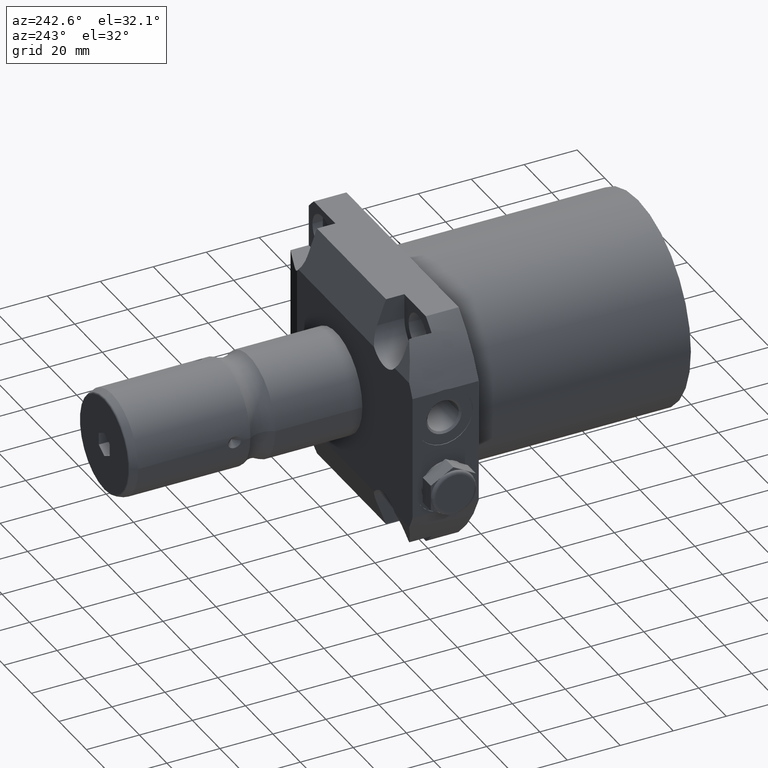
[diagram: clean part render]
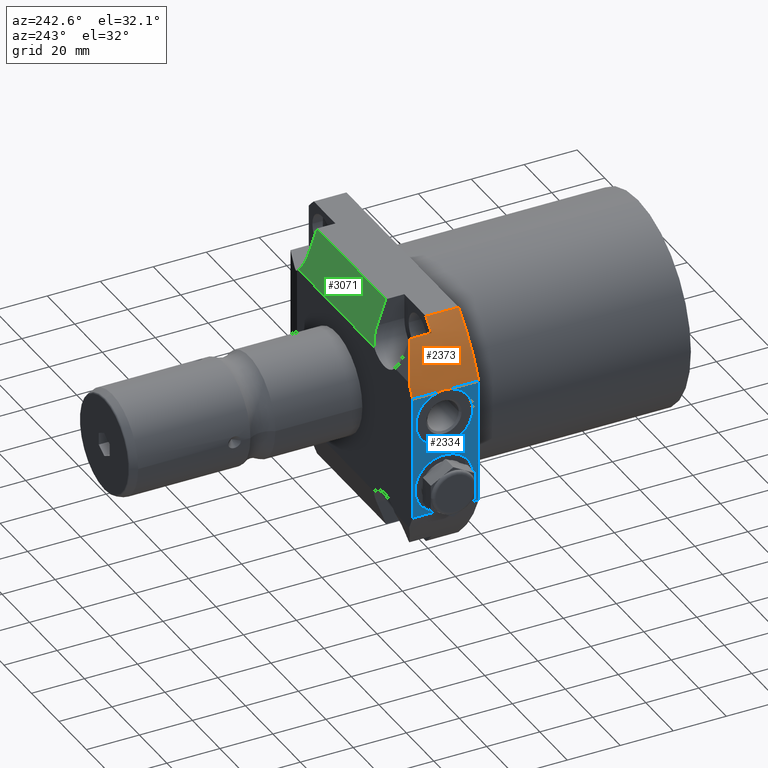
[diagram: same view with three faces highlighted in distinct colors, each labeled with its STEP entity id]
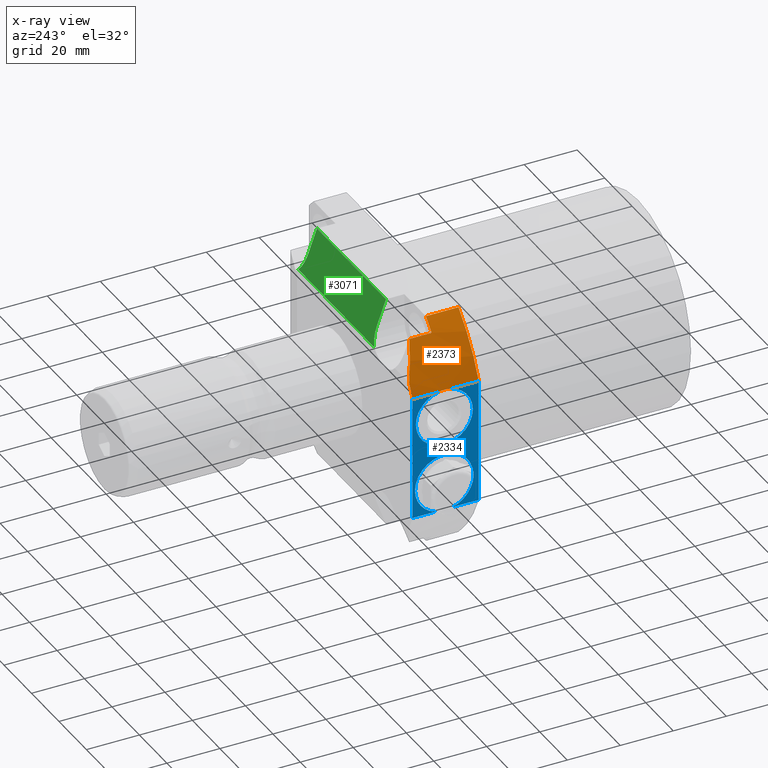
[diagram: x-ray of the same camera — body ghosted, the three highlighted faces saturated]
A machine part, auxiliary view with three faces highlighted in distinct colors.
The next image is the same camera in x-ray (body ghosted, the three faces saturated) — at least one of them is partly hidden behind the body in this view.
Their STEP definitions:

[orange] entity #2373 — the highlighted cylindrical surface (partial cylindrical patch) has radius 60.325 mm, axis along (0, -1, 0).
#147=DIRECTION('',(0.E0,-1.E0,0.E0));
#148=VECTOR('',#147,9.946482331687E0);
#149=CARTESIAN_POINT('',(-5.555E1,1.13919E2,2.352239624273E1));
#150=LINE('',#149,#148);
#166=DIRECTION('',(0.E0,-1.E0,0.E0));
#167=VECTOR('',#166,1.093748233169E1);
#168=CARTESIAN_POINT('',(-5.555E1,9.983748233169E1,2.352239624273E1));
#169=LINE('',#168,#167);
#193=CARTESIAN_POINT('',(-5.555E1,1.039725176683E2,2.352239624273E1));
#194=CARTESIAN_POINT('',(-5.552173736376E1,1.036321514341E2,2.358914069458E1));
#195=CARTESIAN_POINT('',(-5.547908133363E1,1.029480408816E2,2.368924832343E1));
#196=CARTESIAN_POINT('',(-5.545731106004E1,1.019069131890E2,2.374008486992E1));
#197=CARTESIAN_POINT('',(-5.547892613968E1,1.008651502461E2,2.368961128485E1));
#198=CARTESIAN_POINT('',(-5.552163285405E1,1.001791071736E2,2.358938750251E1));
#199=CARTESIAN_POINT('',(-5.555E1,9.983748233169E1,2.352239624273E1));
#393=CARTESIAN_POINT('',(0.E0,8.89E1,0.E0));
#394=DIRECTION('',(0.E0,-1.E0,0.E0));
#395=DIRECTION('',(-6.760648725613E-1,0.E0,7.368421052632E-1));
#396=AXIS2_PLACEMENT_3D('',#393,#394,#395);
#567=CARTESIAN_POINT('',(0.E0,1.01219E2,0.E0));
#568=DIRECTION('',(0.E0,-1.E0,0.E0));
#569=DIRECTION('',(-6.760648725613E-1,0.E0,7.368421052632E-1));
#570=AXIS2_PLACEMENT_3D('',#567,#568,#569);
#713=CARTESIAN_POINT('',(0.E0,1.13919E2,0.E0));
#714=DIRECTION('',(0.E0,-1.E0,0.E0));
#715=DIRECTION('',(-8.806947647727E-1,0.E0,4.736842105263E-1));
#716=AXIS2_PLACEMENT_3D('',#713,#714,#715);
#777=CARTESIAN_POINT('',(-4.4983E1,1.096896780524E2,4.019496655055E1));
#778=CARTESIAN_POINT('',(-4.817806892388E1,1.109911141359E2,3.661930029836E1));
#779=CARTESIAN_POINT('',(-5.088666483011E1,1.124023266086E2,3.274202589558E1));
#780=CARTESIAN_POINT('',(-5.312791168491E1,1.13919E2,2.8575E1));
#822=DIRECTION('',(0.E0,-1.E0,0.E0));
#823=VECTOR('',#822,1.2319E1);
#824=CARTESIAN_POINT('',(-4.078361343726E1,1.01219E2,4.445E1));
#825=LINE('',#824,#823);
#842=DIRECTION('',(0.E0,-1.E0,0.E0));
#843=VECTOR('',#842,8.470678052430E0);
#844=CARTESIAN_POINT('',(-4.4983E1,1.096896780524E2,4.019496655055E1));
#845=LINE('',#844,#843);
#1607=CARTESIAN_POINT('',(-5.555E1,1.13919E2,2.352239624273E1));
#1609=VERTEX_POINT('',#1607);
#1619=CARTESIAN_POINT('',(-5.555E1,8.89E1,2.352239624273E1));
#1621=VERTEX_POINT('',#1619);
#1622=CARTESIAN_POINT('',(-4.078361343726E1,8.89E1,4.445E1));
#1624=VERTEX_POINT('',#1622);
#1668=CARTESIAN_POINT('',(-5.312791168491E1,1.13919E2,2.8575E1));
#1670=VERTEX_POINT('',#1668);
#1676=VERTEX_POINT('',#777);
#1735=CARTESIAN_POINT('',(-4.078361343726E1,1.01219E2,4.445E1));
#1737=VERTEX_POINT('',#1735);
#1768=CARTESIAN_POINT('',(-4.4983E1,1.01219E2,4.019496655055E1));
#1769=VERTEX_POINT('',#1768);
#1828=CARTESIAN_POINT('',(-5.555E1,9.983748233169E1,2.352239624273E1));
#1829=VERTEX_POINT('',#1828);
#1932=CARTESIAN_POINT('',(-5.555E1,1.039725176683E2,2.352239624273E1));
#1933=VERTEX_POINT('',#1932);
#2350=CARTESIAN_POINT('',(0.E0,0.E0,0.E0));
#2351=DIRECTION('',(0.E0,-1.E0,0.E0));
#2352=DIRECTION('',(0.E0,0.E0,-1.E0));
#2353=AXIS2_PLACEMENT_3D('',#2350,#2351,#2352);
#2354=CYLINDRICAL_SURFACE('',#2353,6.0325E1);
#2356=ORIENTED_EDGE('',*,*,#2355,.F.);
#2357=ORIENTED_EDGE('',*,*,#2315,.F.);
#2359=ORIENTED_EDGE('',*,*,#2358,.F.);
#2361=ORIENTED_EDGE('',*,*,#2360,.F.);
#2363=ORIENTED_EDGE('',*,*,#2362,.T.);
#2365=ORIENTED_EDGE('',*,*,#2364,.F.);
#2367=ORIENTED_EDGE('',*,*,#2366,.T.);
#2369=ORIENTED_EDGE('',*,*,#2368,.T.);
#2370=ORIENTED_EDGE('',*,*,#2323,.F.);
#2371=EDGE_LOOP('',(#2356,#2357,#2359,#2361,#2363,#2365,#2367,#2369,#2370));
#2372=FACE_OUTER_BOUND('',#2371,.F.);
#200=B_SPLINE_CURVE_WITH_KNOTS('',3,(#193,#194,#195,#196,#197,#198,#199),
.UNSPECIFIED.,.F.,.F.,(4,1,1,1,4),(0.E0,2.5E-1,5.E-1,7.5E-1,1.E0),
.UNSPECIFIED.);
#397=CIRCLE('',#396,6.0325E1);
#571=CIRCLE('',#570,6.0325E1);
#717=CIRCLE('',#716,6.0325E1);
#781=B_SPLINE_CURVE_WITH_KNOTS('',3,(#777,#778,#779,#780),.UNSPECIFIED.,.F.,.F.,
(4,4),(0.E0,1.E0),.UNSPECIFIED.);
#2315=EDGE_CURVE('',#1609,#1933,#150,.T.);
#2323=EDGE_CURVE('',#1829,#1621,#169,.T.);
#2355=EDGE_CURVE('',#1933,#1829,#200,.T.);
#2358=EDGE_CURVE('',#1670,#1609,#717,.T.);
#2360=EDGE_CURVE('',#1676,#1670,#781,.T.);
#2362=EDGE_CURVE('',#1676,#1769,#845,.T.);
#2364=EDGE_CURVE('',#1737,#1769,#571,.T.);
#2366=EDGE_CURVE('',#1737,#1624,#825,.T.);
#2368=EDGE_CURVE('',#1624,#1621,#397,.T.);
#2373=ADVANCED_FACE('',(#2372),#2354,.T.);

[blue] entity #2334 — the highlighted planar face has unit normal (-1, 0, 0).
#138=CARTESIAN_POINT('',(-5.555E1,1.01905E2,-1.29794E1));
#139=DIRECTION('',(-1.E0,0.E0,0.E0));
#140=DIRECTION('',(0.E0,1.E0,0.E0));
#141=AXIS2_PLACEMENT_3D('',#138,#139,#140);
#143=DIRECTION('',(0.E0,-1.E0,0.E0));
#144=VECTOR('',#143,8.708605738224E0);
#145=CARTESIAN_POINT('',(-5.555E1,1.13919E2,-2.352239624273E1));
#146=LINE('',#145,#144);
#147=DIRECTION('',(0.E0,-1.E0,0.E0));
#148=VECTOR('',#147,9.946482331687E0);
#149=CARTESIAN_POINT('',(-5.555E1,1.13919E2,2.352239624273E1));
#150=LINE('',#149,#148);
#151=CARTESIAN_POINT('',(-5.555E1,1.01905E2,1.2979E1));
#152=DIRECTION('',(-1.E0,0.E0,0.E0));
#153=DIRECTION('',(0.E0,1.924310482226E-1,9.813104970803E-1));
#154=AXIS2_PLACEMENT_3D('',#151,#152,#153);
#156=CARTESIAN_POINT('',(-5.555E1,1.01905E2,1.2979E1));
#157=DIRECTION('',(-1.E0,0.E0,0.E0));
#158=DIRECTION('',(0.E0,1.E0,0.E0));
#159=AXIS2_PLACEMENT_3D('',#156,#157,#158);
#161=CARTESIAN_POINT('',(-5.555E1,1.01905E2,1.2979E1));
#162=DIRECTION('',(-1.E0,0.E0,0.E0));
#163=DIRECTION('',(0.E0,-1.E0,0.E0));
#164=AXIS2_PLACEMENT_3D('',#161,#162,#163);
#166=DIRECTION('',(0.E0,-1.E0,0.E0));
#167=VECTOR('',#166,1.093748233169E1);
#168=CARTESIAN_POINT('',(-5.555E1,9.983748233169E1,2.352239624273E1));
#169=LINE('',#168,#167);
#170=DIRECTION('',(0.E0,0.E0,1.E0));
#171=VECTOR('',#170,4.704479248546E1);
#172=CARTESIAN_POINT('',(-5.555E1,8.89E1,-2.352239624273E1));
#173=LINE('',#172,#171);
#174=DIRECTION('',(0.E0,-1.E0,0.E0));
#175=VECTOR('',#174,9.699605738224E0);
#176=CARTESIAN_POINT('',(-5.555E1,9.859960573822E1,-2.352239624273E1));
#177=LINE('',#176,#175);
#178=CARTESIAN_POINT('',(-5.555E1,1.01905E2,-1.29794E1));
#179=DIRECTION('',(-1.E0,0.E0,0.E0));
#180=DIRECTION('',(0.E0,-2.991577755250E-1,-9.542036603068E-1));
#181=AXIS2_PLACEMENT_3D('',#178,#179,#180);
#183=CARTESIAN_POINT('',(-5.555E1,1.01905E2,-1.29794E1));
#184=DIRECTION('',(-1.E0,0.E0,0.E0));
#185=DIRECTION('',(0.E0,-1.E0,0.E0));
#186=AXIS2_PLACEMENT_3D('',#183,#184,#185);
#718=DIRECTION('',(0.E0,0.E0,1.E0));
#719=VECTOR('',#718,4.704479248546E1);
#720=CARTESIAN_POINT('',(-5.555E1,1.13919E2,-2.352239624273E1));
#721=LINE('',#720,#719);
#1606=CARTESIAN_POINT('',(-5.555E1,1.13919E2,-2.352239624273E1));
#1607=CARTESIAN_POINT('',(-5.555E1,1.13919E2,2.352239624273E1));
#1608=VERTEX_POINT('',#1606);
#1609=VERTEX_POINT('',#1607);
#1618=CARTESIAN_POINT('',(-5.555E1,8.89E1,-2.352239624273E1));
#1619=CARTESIAN_POINT('',(-5.555E1,8.89E1,2.352239624273E1));
#1620=VERTEX_POINT('',#1618);
#1621=VERTEX_POINT('',#1619);
#1824=CARTESIAN_POINT('',(-5.555E1,1.126492E2,1.2979E1));
#1825=CARTESIAN_POINT('',(-5.555E1,9.11608E1,1.2979E1));
#1826=VERTEX_POINT('',#1824);
#1827=VERTEX_POINT('',#1825);
#1828=CARTESIAN_POINT('',(-5.555E1,9.983748233169E1,2.352239624273E1));
#1829=VERTEX_POINT('',#1828);
#1880=CARTESIAN_POINT('',(-5.555E1,1.12954E2,-1.29794E1));
#1881=CARTESIAN_POINT('',(-5.555E1,1.052103942618E2,-2.352239624273E1));
#1882=VERTEX_POINT('',#1880);
#1883=VERTEX_POINT('',#1881);
#1884=CARTESIAN_POINT('',(-5.555E1,9.859960573822E1,-2.352239624273E1));
#1885=CARTESIAN_POINT('',(-5.555E1,9.0856E1,-1.29794E1));
#1886=VERTEX_POINT('',#1884);
#1887=VERTEX_POINT('',#1885);
#1932=CARTESIAN_POINT('',(-5.555E1,1.039725176683E2,2.352239624273E1));
#1933=VERTEX_POINT('',#1932);
#2304=CARTESIAN_POINT('',(-5.555E1,0.E0,-4.445E1));
#2305=DIRECTION('',(-1.E0,0.E0,0.E0));
#2306=DIRECTION('',(0.E0,0.E0,1.E0));
#2307=AXIS2_PLACEMENT_3D('',#2304,#2305,#2306);
#2308=PLANE('',#2307);
#2310=ORIENTED_EDGE('',*,*,#2309,.T.);
#2312=ORIENTED_EDGE('',*,*,#2311,.F.);
#2314=ORIENTED_EDGE('',*,*,#2313,.T.);
#2316=ORIENTED_EDGE('',*,*,#2315,.T.);
#2318=ORIENTED_EDGE('',*,*,#2317,.T.);
#2320=ORIENTED_EDGE('',*,*,#2319,.T.);
#2322=ORIENTED_EDGE('',*,*,#2321,.T.);
#2324=ORIENTED_EDGE('',*,*,#2323,.T.);
#2326=ORIENTED_EDGE('',*,*,#2325,.F.);
#2328=ORIENTED_EDGE('',*,*,#2327,.F.);
#2330=ORIENTED_EDGE('',*,*,#2329,.T.);
#2331=ORIENTED_EDGE('',*,*,#2294,.T.);
#2332=EDGE_LOOP('',(#2310,#2312,#2314,#2316,#2318,#2320,#2322,#2324,#2326,#2328,
#2330,#2331));
#2333=FACE_OUTER_BOUND('',#2332,.F.);
#142=CIRCLE('',#141,1.1049E1);
#155=CIRCLE('',#154,1.07442E1);
#160=CIRCLE('',#159,1.07442E1);
#165=CIRCLE('',#164,1.07442E1);
#182=CIRCLE('',#181,1.1049E1);
#187=CIRCLE('',#186,1.1049E1);
#2294=EDGE_CURVE('',#1887,#1882,#187,.T.);
#2309=EDGE_CURVE('',#1882,#1883,#142,.T.);
#2311=EDGE_CURVE('',#1608,#1883,#146,.T.);
#2313=EDGE_CURVE('',#1608,#1609,#721,.T.);
#2315=EDGE_CURVE('',#1609,#1933,#150,.T.);
#2317=EDGE_CURVE('',#1933,#1826,#155,.T.);
#2319=EDGE_CURVE('',#1826,#1827,#160,.T.);
#2321=EDGE_CURVE('',#1827,#1829,#165,.T.);
#2323=EDGE_CURVE('',#1829,#1621,#169,.T.);
#2325=EDGE_CURVE('',#1620,#1621,#173,.T.);
#2327=EDGE_CURVE('',#1886,#1620,#177,.T.);
#2329=EDGE_CURVE('',#1886,#1887,#182,.T.);
#2334=ADVANCED_FACE('',(#2333),#2308,.T.);

[green] entity #3071 — the highlighted planar face has unit normal (0, -0.9397, -0.342).
#700=DIRECTION('',(1.E0,0.E0,0.E0));
#701=VECTOR('',#700,5.504767481754E1);
#702=CARTESIAN_POINT('',(-2.752383740877E1,1.13919E2,2.8575E1));
#703=LINE('',#702,#701);
#763=DIRECTION('',(0.E0,-3.420201433257E-1,9.396926207859E-1));
#764=VECTOR('',#763,1.000114270573E1);
#765=CARTESIAN_POINT('',(2.5121E1,1.115615647927E2,3.5052E1));
#766=LINE('',#765,#764);
#782=CARTESIAN_POINT('',(-2.5121E1,1.115615647927E2,3.5052E1));
#783=CARTESIAN_POINT('',(-2.5121E1,1.120029136042E2,3.383940410619E1));
#784=CARTESIAN_POINT('',(-2.555057255817E1,1.128336482626E2,3.155697939064E1));
#785=CARTESIAN_POINT('',(-2.671254024595E1,1.135757892213E2,2.951796386468E1));
#786=CARTESIAN_POINT('',(-2.752383740877E1,1.13919E2,2.8575E1));
#788=CARTESIAN_POINT('',(2.752383740877E1,1.13919E2,2.8575E1));
#789=CARTESIAN_POINT('',(2.671254024595E1,1.135757892213E2,2.951796386468E1));
#790=CARTESIAN_POINT('',(2.555057255817E1,1.128336482626E2,3.155697939064E1));
#791=CARTESIAN_POINT('',(2.5121E1,1.120029136042E2,3.383940410619E1));
#792=CARTESIAN_POINT('',(2.5121E1,1.115615647927E2,3.5052E1));
#798=DIRECTION('',(0.E0,-3.420201433257E-1,9.396926207859E-1));
#799=VECTOR('',#798,1.000114270573E1);
#800=CARTESIAN_POINT('',(-2.5121E1,1.115615647927E2,3.5052E1));
#801=LINE('',#800,#799);
#802=DIRECTION('',(1.E0,0.E0,0.E0));
#803=VECTOR('',#802,5.0242E1);
#804=CARTESIAN_POINT('',(-2.5121E1,1.081409725310E2,4.445E1));
#805=LINE('',#804,#803);
#1672=CARTESIAN_POINT('',(-2.5121E1,1.081409725310E2,4.445E1));
#1673=CARTESIAN_POINT('',(2.5121E1,1.081409725310E2,4.445E1));
#1674=VERTEX_POINT('',#1672);
#1675=VERTEX_POINT('',#1673);
#1694=CARTESIAN_POINT('',(-2.752383740877E1,1.13919E2,2.8575E1));
#1695=CARTESIAN_POINT('',(2.752383740877E1,1.13919E2,2.8575E1));
#1696=VERTEX_POINT('',#1694);
#1697=VERTEX_POINT('',#1695);
#1770=VERTEX_POINT('',#792);
#1771=VERTEX_POINT('',#782);
#3055=CARTESIAN_POINT('',(7.239E1,1.081409725310E2,4.445E1));
#3056=DIRECTION('',(0.E0,-9.396926207859E-1,-3.420201433257E-1));
#3057=DIRECTION('',(0.E0,3.420201433257E-1,-9.396926207859E-1));
#3058=AXIS2_PLACEMENT_3D('',#3055,#3056,#3057);
#3059=PLANE('',#3058);
#3061=ORIENTED_EDGE('',*,*,#3060,.F.);
#3063=ORIENTED_EDGE('',*,*,#3062,.T.);
#3064=ORIENTED_EDGE('',*,*,#2975,.T.);
#3065=ORIENTED_EDGE('',*,*,#3009,.T.);
#3066=ORIENTED_EDGE('',*,*,#3032,.T.);
#3068=ORIENTED_EDGE('',*,*,#3067,.F.);
#3069=EDGE_LOOP('',(#3061,#3063,#3064,#3065,#3066,#3068));
#3070=FACE_OUTER_BOUND('',#3069,.F.);
#787=B_SPLINE_CURVE_WITH_KNOTS('',3,(#782,#783,#784,#785,#786),.UNSPECIFIED.,
.F.,.F.,(4,1,4),(0.E0,5.E-1,1.E0),.UNSPECIFIED.);
#793=B_SPLINE_CURVE_WITH_KNOTS('',3,(#788,#789,#790,#791,#792),.UNSPECIFIED.,
.F.,.F.,(4,1,4),(0.E0,5.E-1,1.E0),.UNSPECIFIED.);
#2975=EDGE_CURVE('',#1696,#1697,#703,.T.);
#3009=EDGE_CURVE('',#1697,#1770,#793,.T.);
#3032=EDGE_CURVE('',#1770,#1675,#766,.T.);
#3060=EDGE_CURVE('',#1771,#1674,#801,.T.);
#3062=EDGE_CURVE('',#1771,#1696,#787,.T.);
#3067=EDGE_CURVE('',#1674,#1675,#805,.T.);
#3071=ADVANCED_FACE('',(#3070),#3059,.F.);